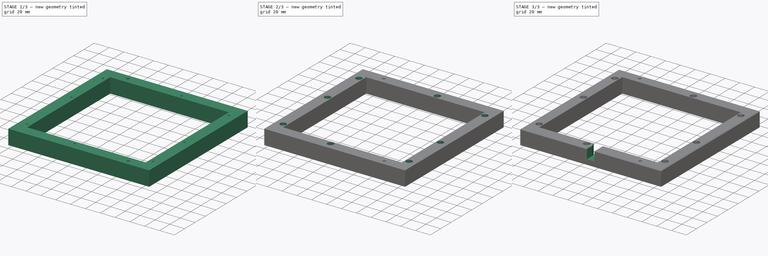
[diagram: build sequence overview — one tinted view per stage of 3, left to right]
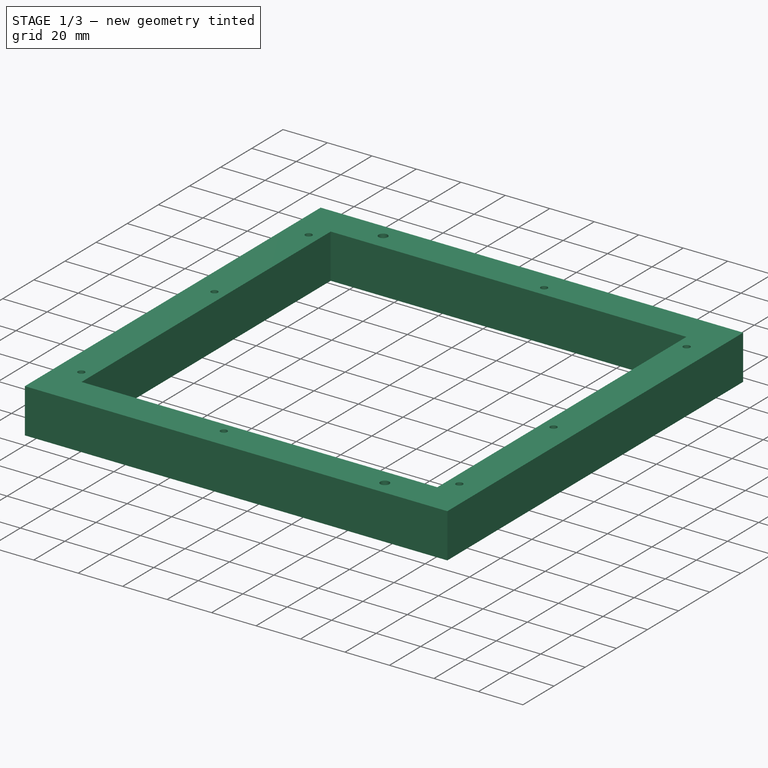
[diagram: stage 1 of 3 — iso view after this stage's code; geometry added in this stage tinted green]
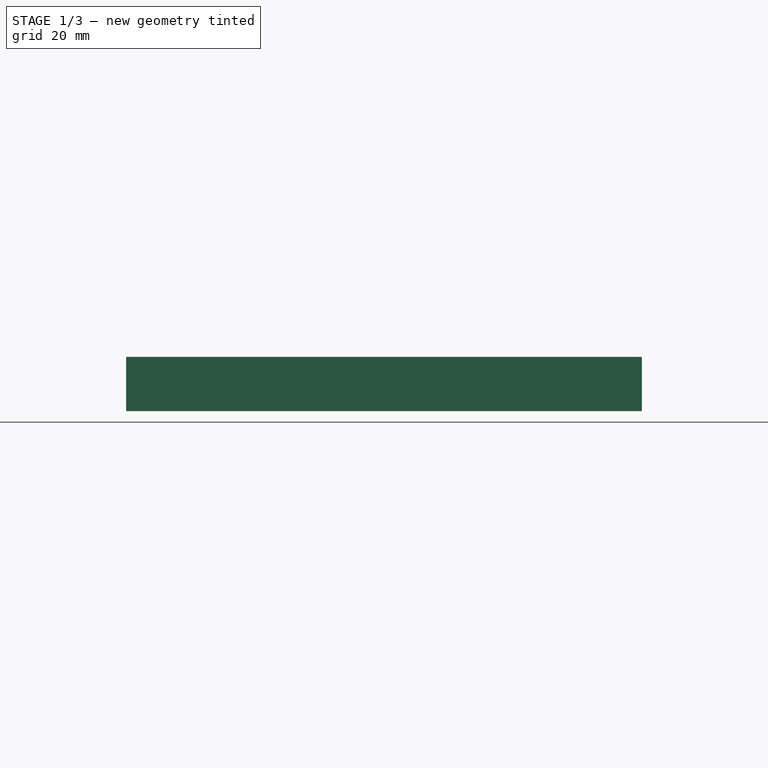
[diagram: stage 1 of 3 — front view after this stage's code; geometry added in this stage tinted green]
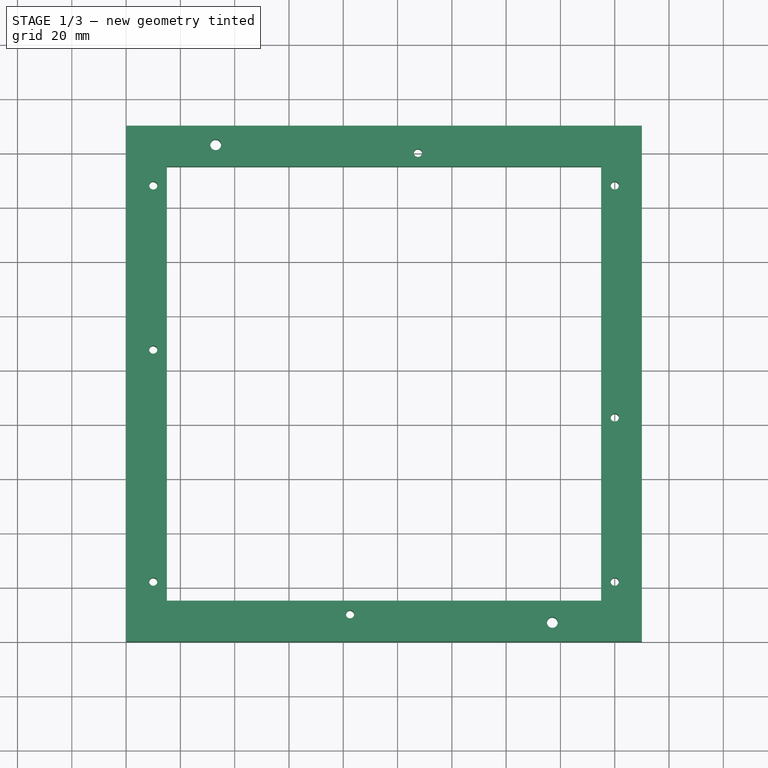
[diagram: stage 1 of 3 — top view after this stage's code; geometry added in this stage tinted green]
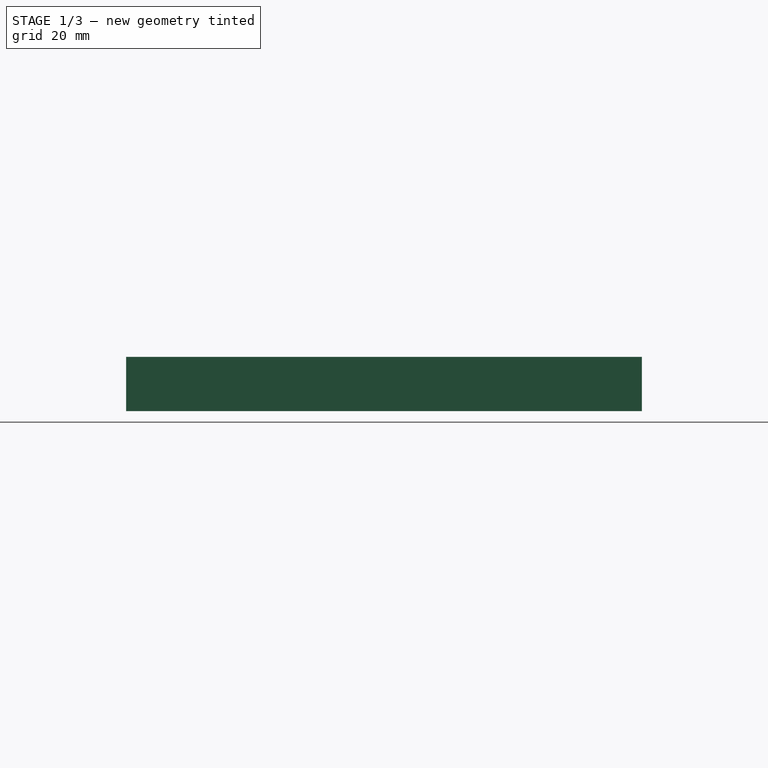
[diagram: stage 1 of 3 — right view after this stage's code; geometry added in this stage tinted green]
FCSTD DOCUMENT  (FreeCAD 2023.131R26244 +5365 (Git))
Label: P3StandOff
License: All rights reserved
objects: Sketcher::SketchObject×4, PartDesign::Pocket×3, PartDesign::Pad×1, PartDesign::Chamfer×1, PartDesign::Body×1
note: 24 computed .brp shape members not serialized (recipe doc carries the construction recipe); baked Part::Feature solids carry a one-line shape summary decoded from their .brp

FEATURE [Sketcher::SketchObject] Sketch
  ArcFitTolerance = 1e-06
  AttachmentSupport = -> [XY_Plane]
  ExternalBSplineMaxDegree = 5
  ExternalBSplineTolerance = 0.0001
  FullyConstrained = true
  InternalTolerance = 1e-06
  InvalidShape = false
  MakeInternals = false
  MapMode = 5
  Support = -> [XY_Plane]
  TreeRank = 11
  ValidateShape = true
  sketch-geometry (8):
    g0: LineSegment StartX=190 StartY=190 StartZ=0 EndX=0 EndY=190 EndZ=0
    g1: LineSegment StartX=0 StartY=190 StartZ=0 EndX=0 EndY=0 EndZ=0
    g2: LineSegment StartX=0 StartY=0 StartZ=0 EndX=190 EndY=0 EndZ=0
    g3: LineSegment StartX=190 StartY=0 StartZ=0 EndX=190 EndY=190 EndZ=0
    g4: LineSegment StartX=175 StartY=15 StartZ=0 EndX=15 EndY=15 EndZ=0
    g5: LineSegment StartX=15 StartY=15 StartZ=0 EndX=15 EndY=175 EndZ=0
    g6: LineSegment StartX=15 StartY=175 StartZ=0 EndX=175 EndY=175 EndZ=0
    g7: LineSegment StartX=175 StartY=175 StartZ=0 EndX=175 EndY=15 EndZ=0
  constraints (23):
    c: Coincident(g0,g1)
    c: Coincident(g1,g2)
    c: Coincident(g2,g3)
    c: Coincident(g3,g0)
    c: Horizontal(g0)
    c: Horizontal(g2)
    c: Vertical(g1)
    c: Vertical(g3)
    c: Coincident(g1,g-1)
    c: Equal(g0,g3)
    c: DistanceX(g2,g2) = 190
    c: Coincident(g4,g5)
    c: Coincident(g5,g6)
    c: Coincident(g6,g7)
    c: Coincident(g7,g4)
    c: Horizontal(g4)
    c: Horizontal(g6)
    c: Vertical(g5)
    c: Vertical(g7)
    c: Equal(g4,g7)
    c: DistanceX(g1,g4) = 15
    c: DistanceY(g1,g4) = 15
    c: DistanceY(g6,g0) = 15
FEATURE [PartDesign::Pad] Pad
  AddSubType = 0
  AlongSketchNormal = false
  AutoTaperInnerAngle = true
  CheckUpToFaceLimits = true
  ClaimChildren = false
  Direction = (0,0,1)
  Fit = 0
  FitJoin = 0
  InnerFit = 0
  InnerFitJoin = 0
  InvalidShape = false
  Length = 20
  Length2 = 100
  Linearize = true
  NewSolid = false
  Profile = -> Sketch
  Reversed = true
  Suppress = false
  TaperInnerAngle = 0
  TaperInnerAngleRev = 0
  TreeRank = 12
  Type = 0
  ValidateShape = true
  _ProfileBasedVersion = 1
FEATURE [Sketcher::SketchObject] Sketch001
  ArcFitTolerance = 1e-06
  AttachmentSupport = -> [XY_Plane]
  ExternalBSplineMaxDegree = 5
  ExternalBSplineTolerance = 0.0001
  ExternalGeometry = -> [Pad]
  FullyConstrained = true
  InternalTolerance = 1e-06
  InvalidShape = false
  MakeInternals = false
  MapMode = 5
  Support = -> [XY_Plane]
  TreeRank = 13
  ValidateShape = true
  sketch-geometry (10):
    g0: Circle CenterX=10 CenterY=22 CenterZ=0 NormalX=0 NormalY=0 NormalZ=1 AngleXU=0 Radius=1.5
    g1: Circle CenterX=10 CenterY=107.5 CenterZ=0 NormalX=0 NormalY=0 NormalZ=1 AngleXU=0 Radius=1.5
    g2: Circle CenterX=10 CenterY=168 CenterZ=0 NormalX=0 NormalY=0 NormalZ=1 AngleXU=0 Radius=1.5
    g3: Circle CenterX=107.5 CenterY=180 CenterZ=0 NormalX=0 NormalY=0 NormalZ=1 AngleXU=0 Radius=1.5
    g4: Circle CenterX=180 CenterY=168 CenterZ=0 NormalX=0 NormalY=0 NormalZ=1 AngleXU=0 Radius=1.5
    g5: Circle CenterX=180 CenterY=82.5 CenterZ=0 NormalX=0 NormalY=0 NormalZ=1 AngleXU=0 Radius=1.5
    g6: Circle CenterX=180 CenterY=22 CenterZ=0 NormalX=0 NormalY=0 NormalZ=1 AngleXU=0 Radius=1.5
    g7: Circle CenterX=82.5 CenterY=10 CenterZ=0 NormalX=0 NormalY=0 NormalZ=1 AngleXU=0 Radius=1.5
    g8: Circle CenterX=33 CenterY=183 CenterZ=0 NormalX=0 NormalY=0 NormalZ=1 AngleXU=0 Radius=2
    g9: Circle CenterX=157 CenterY=7 CenterZ=0 NormalX=0 NormalY=0 NormalZ=1 AngleXU=0 Radius=2
  constraints (30):
    c: Equal(g2,g1)
    c: Equal(g2,g0)
    c: Equal(g2,g7)
    c: Equal(g2,g6)
    c: Equal(g2,g5)
    c: Equal(g2,g4)
    c: Equal(g2,g3)
    c: Diameter(g2) = 3
    c: DistanceX(g-1,g7) = 82.5
    c: DistanceY(g-1,g7) = 10
    c: DistanceX(g3,g-3) = 82.5
    c: DistanceY(g3,g-3) = 10
    c: DistanceX(g-1,g2) = 10
    c: DistanceX(g-1,g1) = 10
    c: DistanceX(g-1,g0) = 10
    c: DistanceX(g4,g-3) = 10
    c: DistanceX(g5,g-3) = 10
    c: DistanceX(g6,g-3) = 10
    c: DistanceY(g-1,g0) = 22
    c: DistanceY(g-1,g6) = 22
    c: DistanceY(g4,g-3) = 22
    c: DistanceY(g2,g-3) = 22
    c: DistanceY(g-1,g5) = 82.5
    c: DistanceY(g1,g-3) = 82.5
    c: Equal(g8,g9)
    c: Diameter(g8) = 4
    c: DistanceX(g-1,g8) = 33
    c: DistanceX(g9,g-3) = 33
    c: DistanceY(g-1,g9) = 7
    c: DistanceY(g8,g-3) = 7
FEATURE [PartDesign::Pocket] Pocket  label="ThruHoles"
  AddSubType = 1
  AutoTaperInnerAngle = true
  BaseFeature = -> Pad
  CheckUpToFaceLimits = true
  ClaimChildren = false
  Fit = 0
  FitJoin = 0
  InnerFit = 0
  InnerFitJoin = 0
  InvalidShape = false
  Length = 5
  Length2 = 100
  Linearize = true
  NewSolid = false
  Profile = -> Sketch001
  Suppress = false
  TaperInnerAngle = 0
  TaperInnerAngleRev = 0
  TreeRank = 14
  Type = 1
  ValidateShape = true
  _ProfileBasedVersion = 1
  _Version = 1
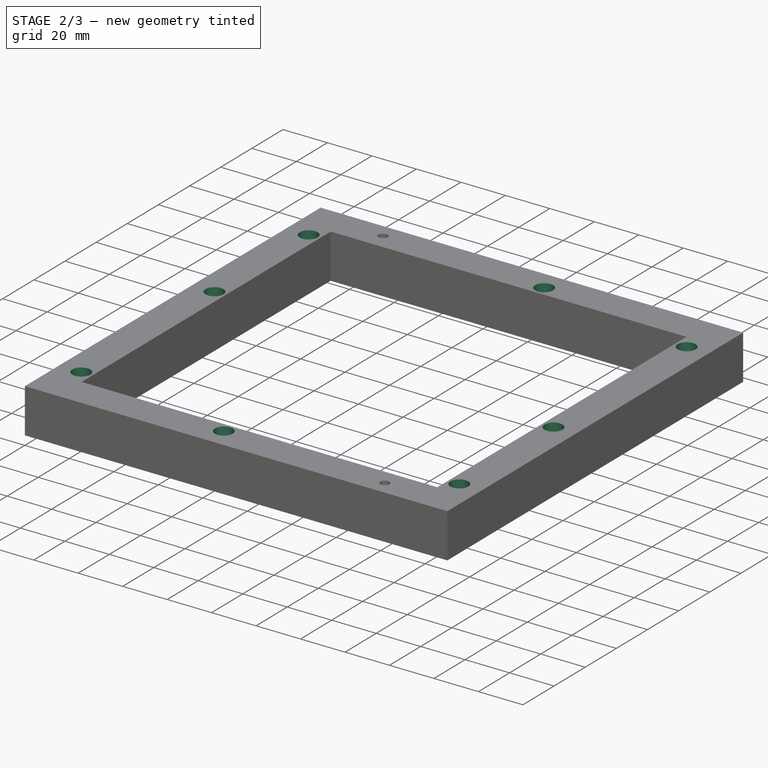
[diagram: stage 2 of 3 — iso view after this stage's code; geometry added in this stage tinted green]
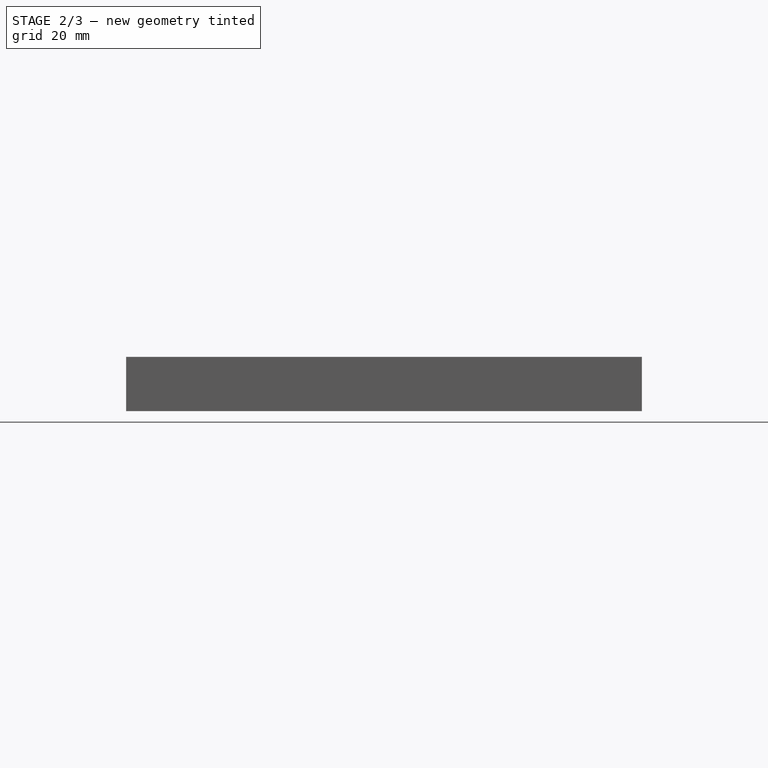
[diagram: stage 2 of 3 — front view after this stage's code; geometry added in this stage tinted green]
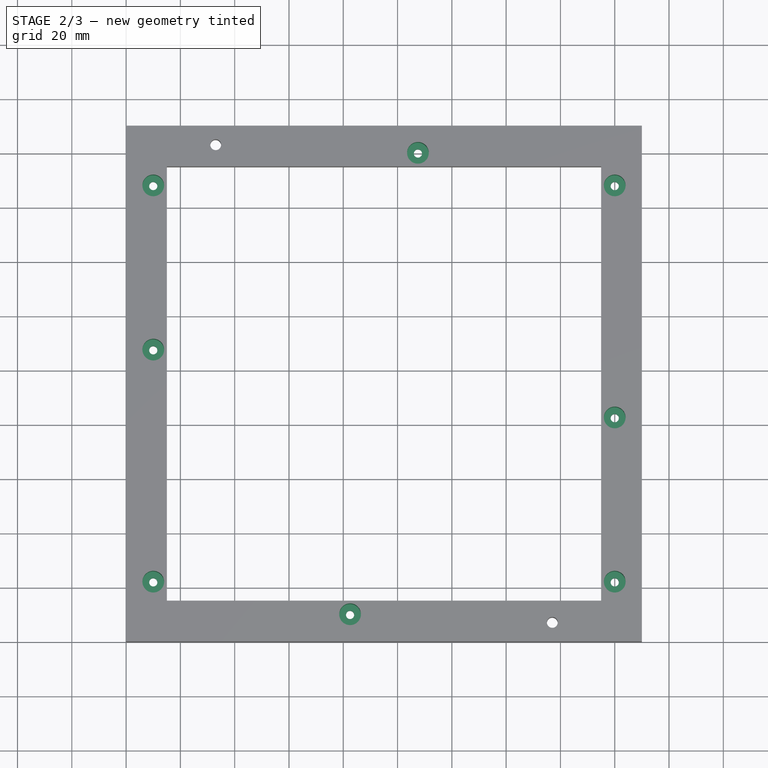
[diagram: stage 2 of 3 — top view after this stage's code; geometry added in this stage tinted green]
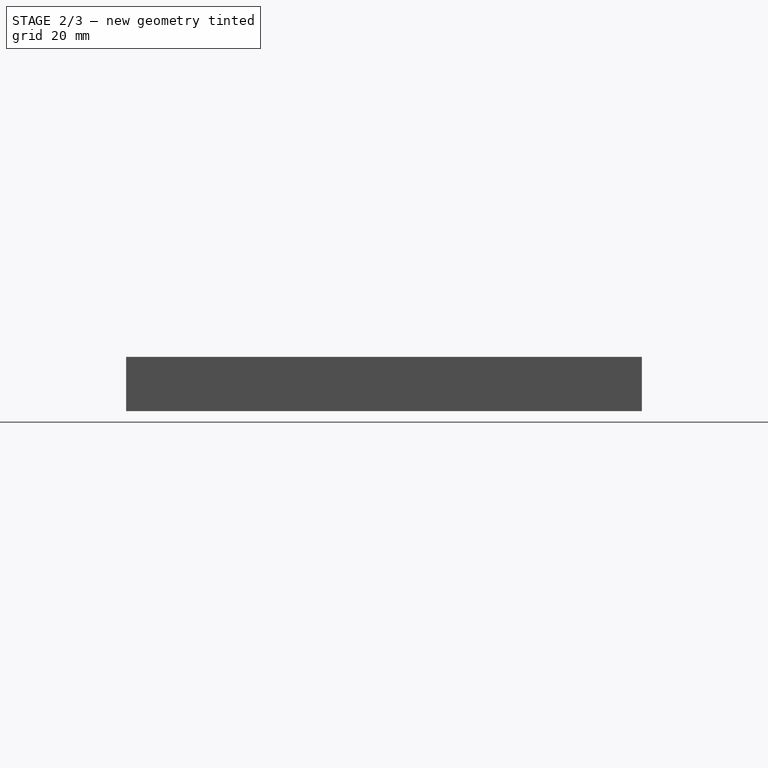
[diagram: stage 2 of 3 — right view after this stage's code; geometry added in this stage tinted green]
FEATURE [Sketcher::SketchObject] Sketch002
  ArcFitTolerance = 1e-06
  ExternalBSplineMaxDegree = 5
  ExternalBSplineTolerance = 0.0001
  ExternalGeometry = -> [Pocket]
  FullyConstrained = true
  InternalTolerance = 1e-06
  InvalidShape = false
  MakeInternals = false
  MapMode = 5
  TreeRank = 16
  ValidateShape = true
  sketch-geometry (8):
    g0: Circle CenterX=107.5 CenterY=180 CenterZ=0 NormalX=0 NormalY=0 NormalZ=1 AngleXU=0 Radius=4
    g1: Circle CenterX=180 CenterY=168 CenterZ=0 NormalX=0 NormalY=0 NormalZ=1 AngleXU=0 Radius=4
    g2: Circle CenterX=10 CenterY=168 CenterZ=0 NormalX=0 NormalY=0 NormalZ=1 AngleXU=0 Radius=4
    g3: Circle CenterX=10 CenterY=107.5 CenterZ=0 NormalX=0 NormalY=0 NormalZ=1 AngleXU=0 Radius=4
    g4: Circle CenterX=10 CenterY=22 CenterZ=0 NormalX=0 NormalY=0 NormalZ=1 AngleXU=0 Radius=4
    g5: Circle CenterX=82.5 CenterY=10 CenterZ=0 NormalX=0 NormalY=0 NormalZ=1 AngleXU=0 Radius=4
    g6: Circle CenterX=180 CenterY=22 CenterZ=0 NormalX=0 NormalY=0 NormalZ=1 AngleXU=0 Radius=4
    g7: Circle CenterX=180 CenterY=82.5 CenterZ=0 NormalX=0 NormalY=0 NormalZ=1 AngleXU=0 Radius=4
  constraints (11):
    c: Equal(g1,g0)
    c: Equal(g1, g2-g7) x6
    c: Diameter(g1) = 8
    c: Coincident(g0,g-3)
    c: Coincident(g1,g-4)
    c: Coincident(g-5,g7)
    c: Coincident(g6,g-6)
    c: Coincident(g5,g-7)
    c: Coincident(g4,g-8)
    c: Coincident(g3,g-9)
    c: Coincident(g2,g-10)
FEATURE [PartDesign::Pocket] Pocket001  label="ScrewPockets"
  AddSubType = 1
  AutoTaperInnerAngle = true
  BaseFeature = -> Pocket
  CheckUpToFaceLimits = true
  ClaimChildren = false
  Fit = 0
  FitJoin = 0
  InnerFit = 0
  InnerFitJoin = 0
  InvalidShape = false
  Length = 15
  Length2 = 100
  Linearize = true
  NewSolid = false
  Profile = -> Sketch002
  Suppress = false
  TaperInnerAngle = 0
  TaperInnerAngleRev = 0
  TreeRank = 17
  Type = 0
  ValidateShape = true
  _ProfileBasedVersion = 1
  _Version = 1
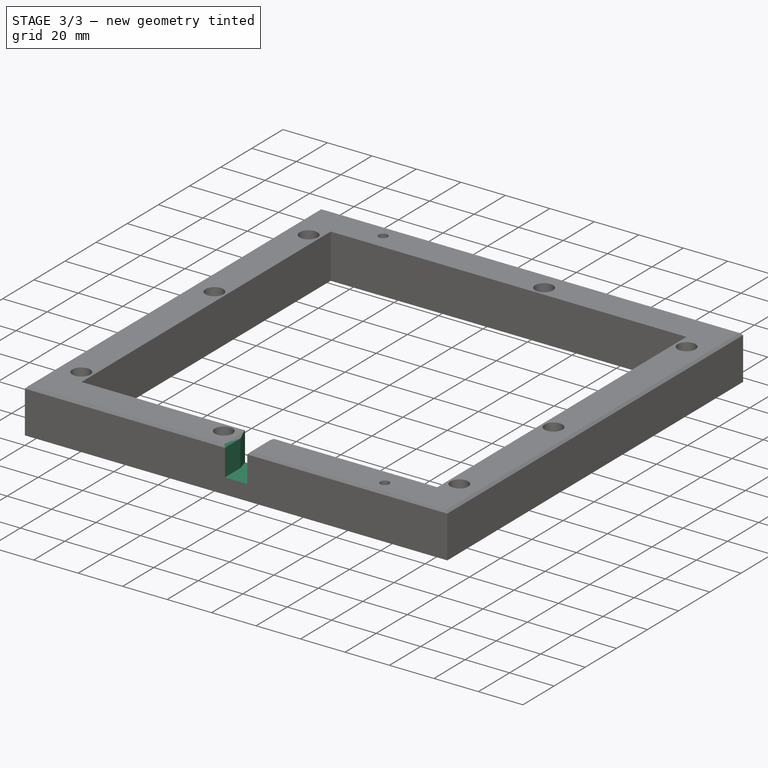
[diagram: stage 3 of 3 — iso view after this stage's code; geometry added in this stage tinted green]
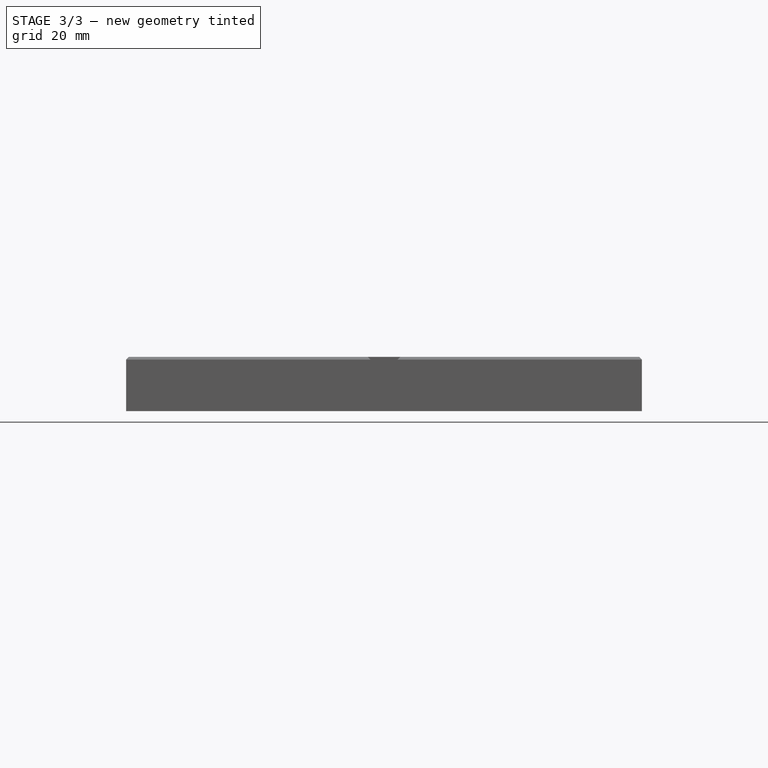
[diagram: stage 3 of 3 — front view after this stage's code; geometry added in this stage tinted green]
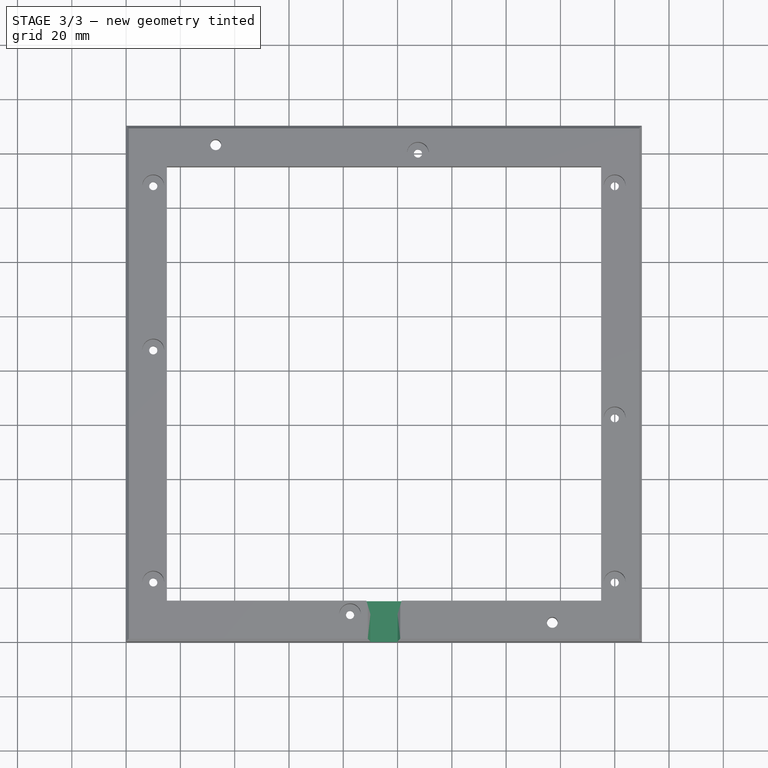
[diagram: stage 3 of 3 — top view after this stage's code; geometry added in this stage tinted green]
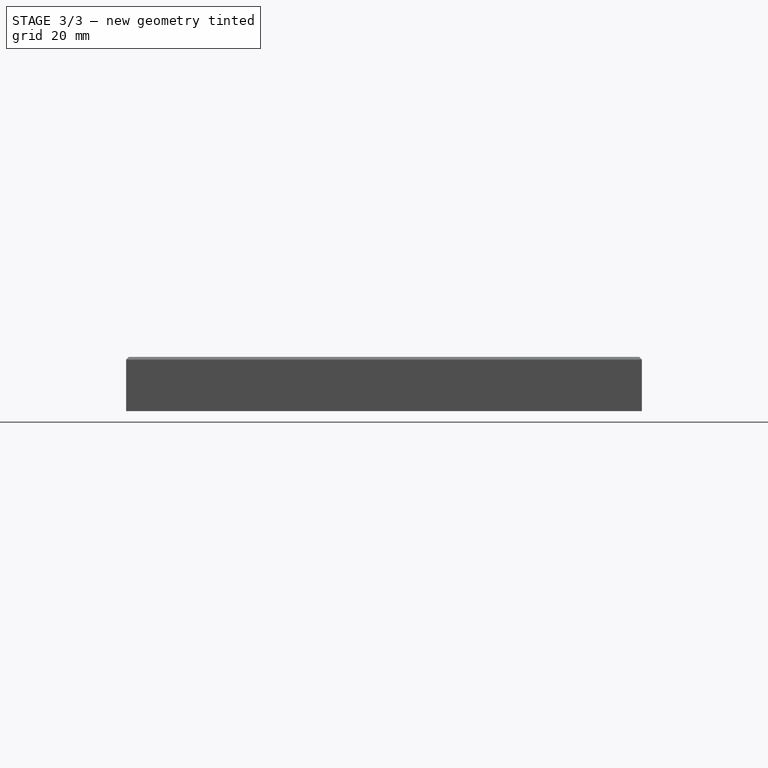
[diagram: stage 3 of 3 — right view after this stage's code; geometry added in this stage tinted green]
FEATURE [Sketcher::SketchObject] Sketch003
  ArcFitTolerance = 1e-06
  BaseAttacherType = Attacher::AttachEngine3D
  BaseMapMode = 5
  BaseMapPathParameter = 0
  BaseMapReversed = false
  ExternalBSplineMaxDegree = 5
  ExternalBSplineTolerance = 0.0001
  ExternalGeometry = -> [Pocket001]
  FullyConstrained = true
  InternalTolerance = 1e-06
  InvalidShape = false
  MakeInternals = false
  TreeRank = 18
  ValidateShape = true
  sketch-geometry (6):
    g0: LineSegment StartX=90 StartY=0 StartZ=0 EndX=100 EndY=0 EndZ=0
    g1: LineSegment StartX=100 StartY=0 StartZ=0 EndX=100 EndY=10 EndZ=0
    g2: LineSegment StartX=100 StartY=10 StartZ=0 EndX=101.5 EndY=15 EndZ=0
    g3: LineSegment StartX=101.5 StartY=15 StartZ=0 EndX=88.5 EndY=15 EndZ=0
    g4: LineSegment StartX=88.5 StartY=15 StartZ=0 EndX=90 EndY=10 EndZ=0
    g5: LineSegment StartX=90 StartY=10 StartZ=0 EndX=90 EndY=0 EndZ=0
  constraints (18):
    c: Horizontal(g0)
    c: Coincident(g0,g1)
    c: Vertical(g1)
    c: Coincident(g1,g2)
    c: Coincident(g2,g3)
    c: Coincident(g3,g4)
    c: Coincident(g4,g5)
    c: Coincident(g5,g0)
    c: PointOnObject(g0,g-1)
    c: PointOnObject(g3,g-3)
    c: Horizontal(g3)
    c: Equal(g4,g2)
    c: Equal(g1,g5)
    c: Vertical(g4,g0)
    c: DistanceX(g0,g0) = 10
    c: DistanceX(g3,g3) = 13
    c: DistanceY(g5,g5) = 10
    c: DistanceX(g-1,g0) = 90
FEATURE [PartDesign::Pocket] Pocket002
  AddSubType = 1
  AutoTaperInnerAngle = true
  BaseFeature = -> Pocket001
  CheckUpToFaceLimits = true
  ClaimChildren = false
  Fit = 0
  FitJoin = 0
  InnerFit = 0
  InnerFitJoin = 0
  InvalidShape = false
  Length = 13
  Length2 = 100
  Linearize = true
  NewSolid = false
  Profile = -> Sketch003
  Suppress = false
  TaperInnerAngle = 0
  TaperInnerAngleRev = 0
  TreeRank = 19
  Type = 0
  ValidateShape = true
  _ProfileBasedVersion = 1
  _Version = 1
FEATURE [PartDesign::Chamfer] Chamfer
  AddSubType = 0
  Angle = 45
  Base = -> Pocket002 [Edge9,Edge21,Edge11,Edge6,Edge3,Edge12,Edge20]
  BaseFeature = -> Pocket002
  ChamferType = 0
  FlipDirection = false
  InvalidShape = false
  NewSolid = false
  Size = 1
  Size2 = 1
  SupportTransform = false
  Suppress = false
  TreeRank = 20
  ValidateShape = true
FEATURE [PartDesign::Body] Body
  AutoGroupSolids = false
  ClaimAllChildren = false
  ExportMode = 0
  Group = -> [Sketch,Pad,Sketch001,Pocket,Sketch002,Pocket001,Sketch003,Pocket002,Chamfer]
  InvalidShape = false
  Origin = -> Origin
  Tip = -> Chamfer
  TreeRank = 10
  ValidateShape = true
  _ExportChildren = -> [Pad,Pocket,Pocket001,Pocket002,Chamfer]
  _GroupVersion = 1
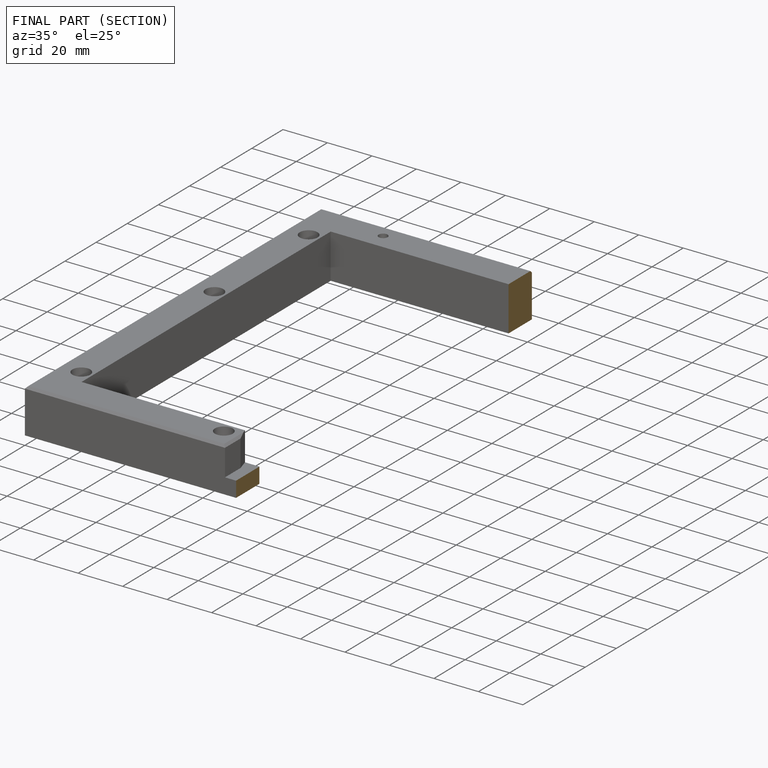
[diagram: finished part — half-section view (interior)]
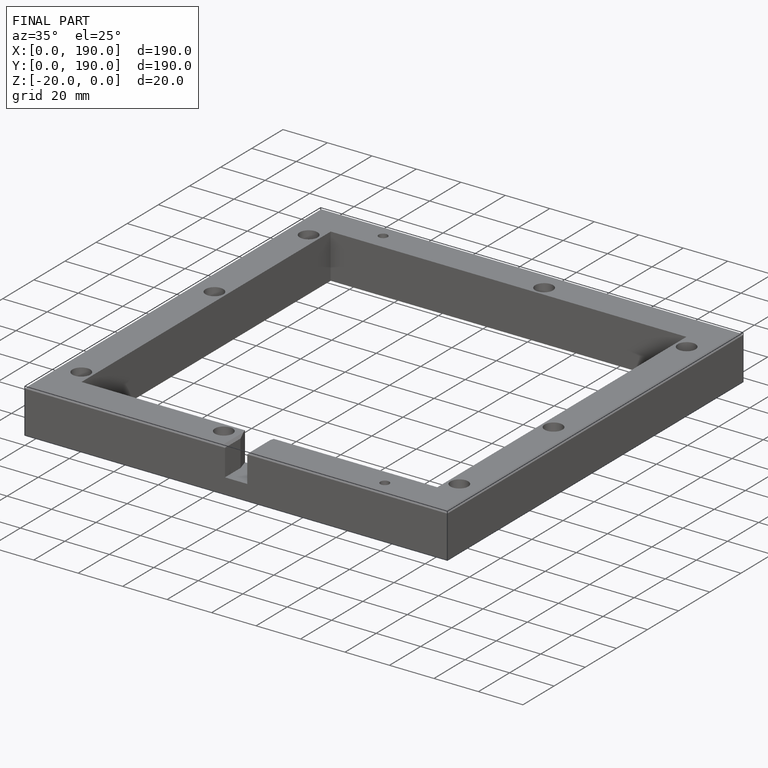
[diagram: finished part — iso view with bounding-box wireframe]
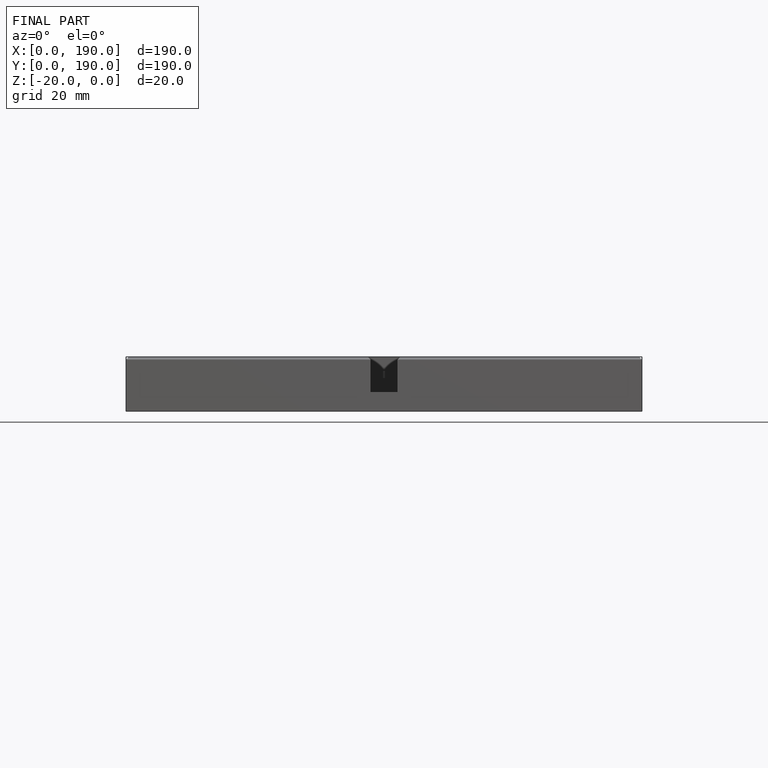
[diagram: finished part — front view with bounding-box wireframe]
